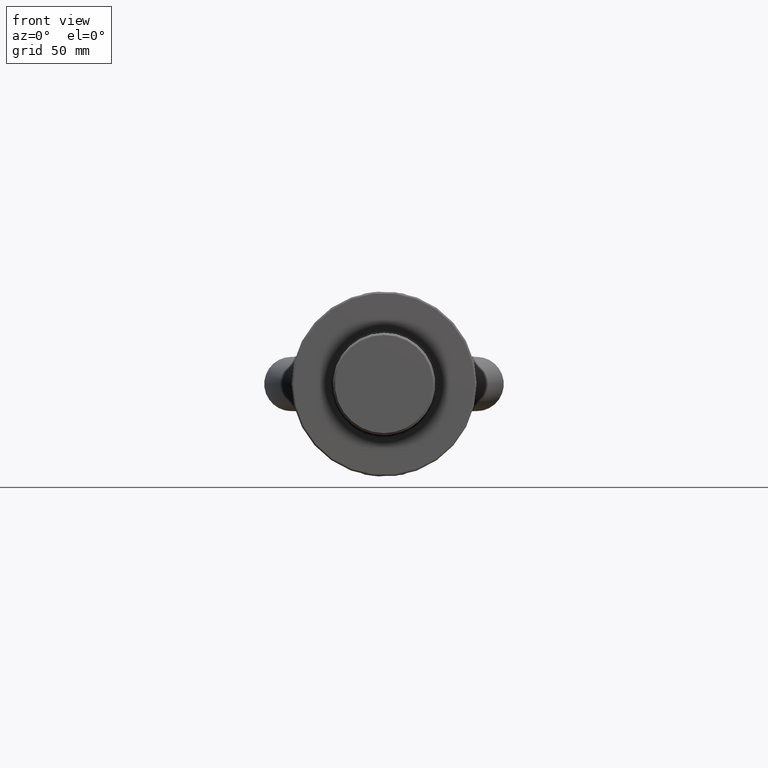
[diagram: clean part render]
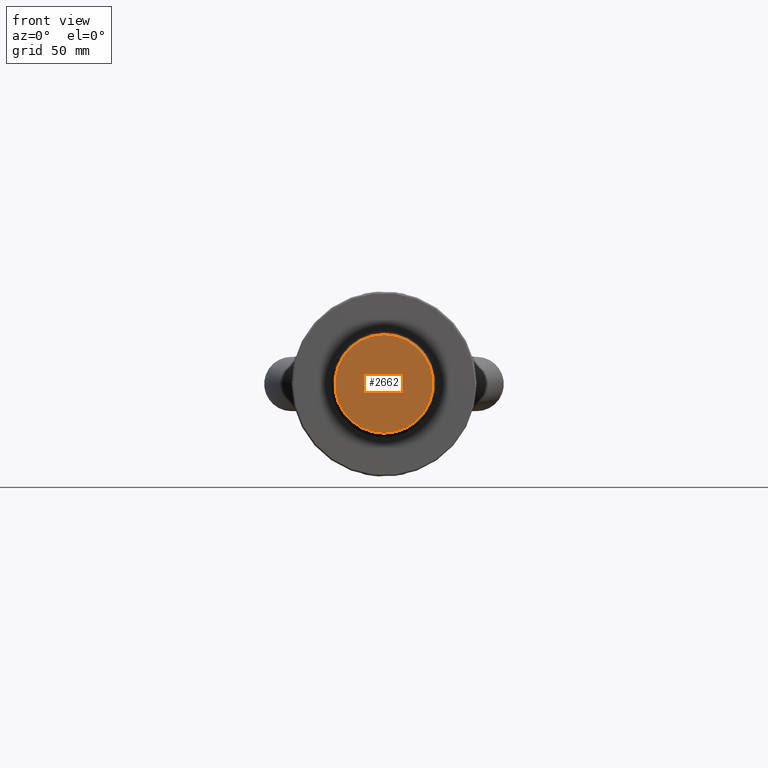
[diagram: same view with one face highlighted and labeled with its STEP entity id]
A machine part, front view. The second image highlights one B-rep face of the part: STEP entity #2662.
In plain terms, the highlighted planar face has unit normal (0, 1, 0).
Its self-contained STEP definition (entity closure, byte-faithful):
#1819=FACE_OUTER_BOUND('',#3086,.T.);
#2662=ADVANCED_FACE('',(#1819),#2897,.F.);
#2897=PLANE('',#5640);
#3086=EDGE_LOOP('',(#3430));
#3430=ORIENTED_EDGE('',*,*,#4983,.T.);
#4573=VERTEX_POINT('',#6660);
#4983=EDGE_CURVE('',#4573,#4573,#5555,.T.);
#5555=CIRCLE('',#5639,24.4);
#5639=AXIS2_PLACEMENT_3D('',#6659,#5905,#5906);
#5640=AXIS2_PLACEMENT_3D('',#6661,#5907,#5908);
#5905=DIRECTION('',(0.,-1.,0.));
#5906=DIRECTION('',(0.,0.,1.));
#5907=DIRECTION('',(0.,1.,0.));
#5908=DIRECTION('',(0.,0.,1.));
#6659=CARTESIAN_POINT('',(0.,-68.,0.));
#6660=CARTESIAN_POINT('',(0.,-68.,24.4));
#6661=CARTESIAN_POINT('',(0.,-68.,0.));